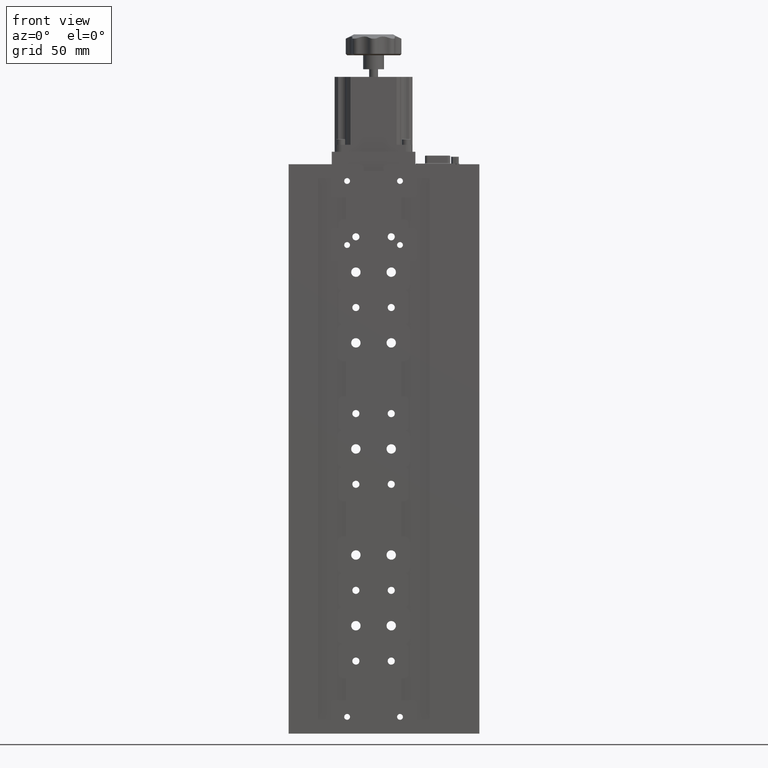
[diagram: clean part render]
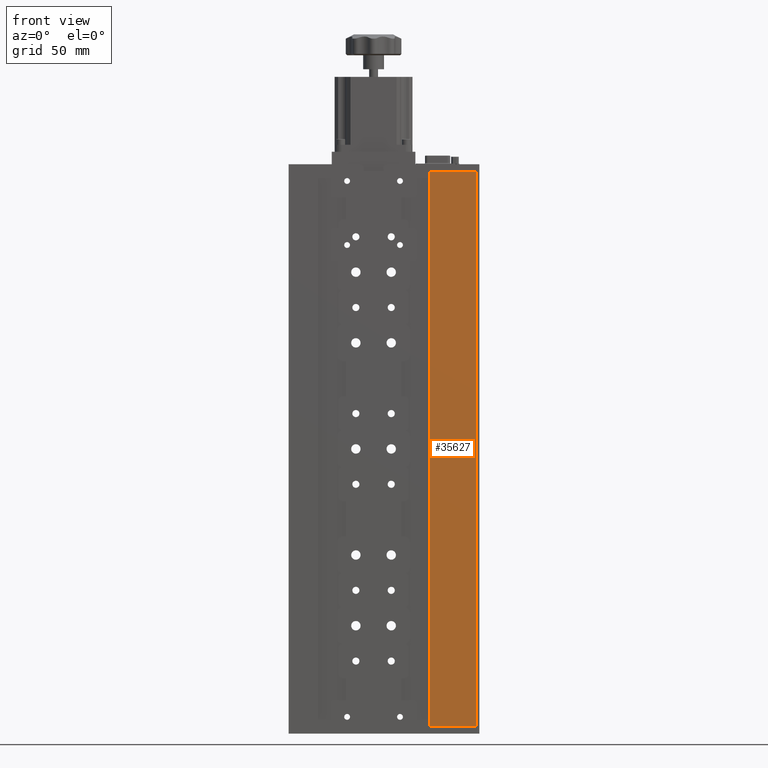
[diagram: same view with one face highlighted and labeled with its STEP entity id]
A machine part, front view. The second image highlights one B-rep face of the part: STEP entity #35627.
In plain terms, the highlighted planar face has unit normal (-0, 1, 0).
Its self-contained STEP definition (entity closure, byte-faithful):
#2729 = DIRECTION ( 'NONE',  ( -1.000000000000000000, -3.029454718961576000E-018, -0.0000000000000000000 ) ) ;
#5125 = EDGE_CURVE ( 'NONE', #8903, #13084, #20135, .T. ) ;
#5426 = LINE ( 'NONE', #25297, #21366 ) ;
#6009 = DIRECTION ( 'NONE',  ( 0.0000000000000000000, 0.0000000000000000000, 1.000000000000000000 ) ) ;
#8844 = FACE_OUTER_BOUND ( 'NONE', #39816, .T. ) ;
#8903 = VERTEX_POINT ( 'NONE', #22868 ) ;
#9228 = AXIS2_PLACEMENT_3D ( 'NONE', #10196, #33973, #13610 ) ;
#9786 = VERTEX_POINT ( 'NONE', #35156 ) ;
#10196 = CARTESIAN_POINT ( 'NONE',  ( -74.65511670107466100, -10.10442398720761200, -262.2607007065120700 ) ) ;
#11637 = CARTESIAN_POINT ( 'NONE',  ( 29.71988329892533500, -10.10442398720761200, 136.7392992934879300 ) ) ;
#13084 = VERTEX_POINT ( 'NONE', #11637 ) ;
#13610 = DIRECTION ( 'NONE',  ( -1.000000000000000000, -3.029454718961576000E-018, 0.0000000000000000000 ) ) ;
#14848 = EDGE_CURVE ( 'NONE', #9786, #8903, #40012, .T. ) ;
#17615 = ORIENTED_EDGE ( 'NONE', *, *, #5125, .T. ) ;
#19071 = VECTOR ( 'NONE', #27717, 1000.000000000000000 ) ;
#20135 = LINE ( 'NONE', #37653, #19071 ) ;
#21366 = VECTOR ( 'NONE', #38956, 1000.000000000000000 ) ;
#21435 = VERTEX_POINT ( 'NONE', #23996 ) ;
#22868 = CARTESIAN_POINT ( 'NONE',  ( 63.71988329892533200, -10.10442398720761200, 136.7392992934879300 ) ) ;
#23996 = CARTESIAN_POINT ( 'NONE',  ( 29.71988329892532800, -10.10442398720761400, -262.2607007065120700 ) ) ;
#25297 = CARTESIAN_POINT ( 'NONE',  ( 29.71988329892532800, -10.10442398720761200, 136.7392992934879300 ) ) ;
#25565 = EDGE_CURVE ( 'NONE', #9786, #21435, #42907, .T. ) ;
#26235 = CARTESIAN_POINT ( 'NONE',  ( 63.71988329892530300, -10.10442398720761200, -262.2607007065120700 ) ) ;
#27011 = PLANE ( 'NONE',  #9228 ) ;
#27717 = DIRECTION ( 'NONE',  ( -1.000000000000000000, -3.029454718961576000E-018, -0.0000000000000000000 ) ) ;
#29500 = ORIENTED_EDGE ( 'NONE', *, *, #37884, .F. ) ;
#30936 = VECTOR ( 'NONE', #6009, 1000.000000000000000 ) ;
#33173 = CARTESIAN_POINT ( 'NONE',  ( -74.65511670107466100, -10.10442398720761200, -262.2607007065120700 ) ) ;
#33811 = VECTOR ( 'NONE', #2729, 1000.000000000000000 ) ;
#33973 = DIRECTION ( 'NONE',  ( -3.029454718961576000E-018, 1.000000000000000000, 0.0000000000000000000 ) ) ;
#35156 = CARTESIAN_POINT ( 'NONE',  ( 63.71988329892531800, -10.10442398720761400, -262.2607007065120700 ) ) ;
#35627 = ADVANCED_FACE ( 'NONE', ( #8844 ), #27011, .F. ) ;
#37653 = CARTESIAN_POINT ( 'NONE',  ( -74.65511670107466100, -10.10442398720761200, 136.7392992934879300 ) ) ;
#37884 = EDGE_CURVE ( 'NONE', #21435, #13084, #5426, .T. ) ;
#38412 = ORIENTED_EDGE ( 'NONE', *, *, #14848, .T. ) ;
#38956 = DIRECTION ( 'NONE',  ( 0.0000000000000000000, 0.0000000000000000000, 1.000000000000000000 ) ) ;
#39816 = EDGE_LOOP ( 'NONE', ( #43156, #38412, #17615, #29500 ) ) ;
#40012 = LINE ( 'NONE', #26235, #30936 ) ;
#42907 = LINE ( 'NONE', #33173, #33811 ) ;
#43156 = ORIENTED_EDGE ( 'NONE', *, *, #25565, .F. ) ;